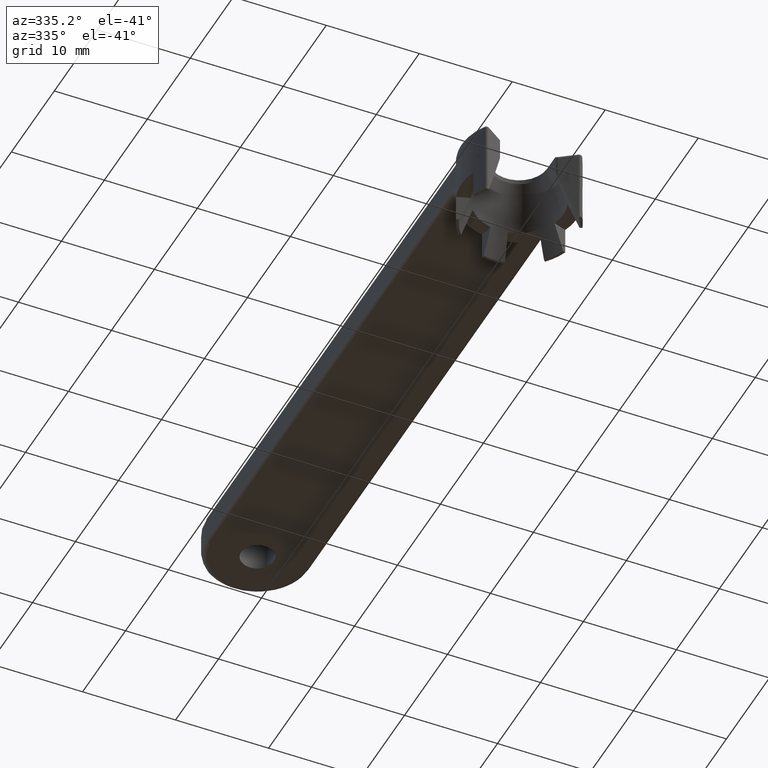
[diagram: clean part render]
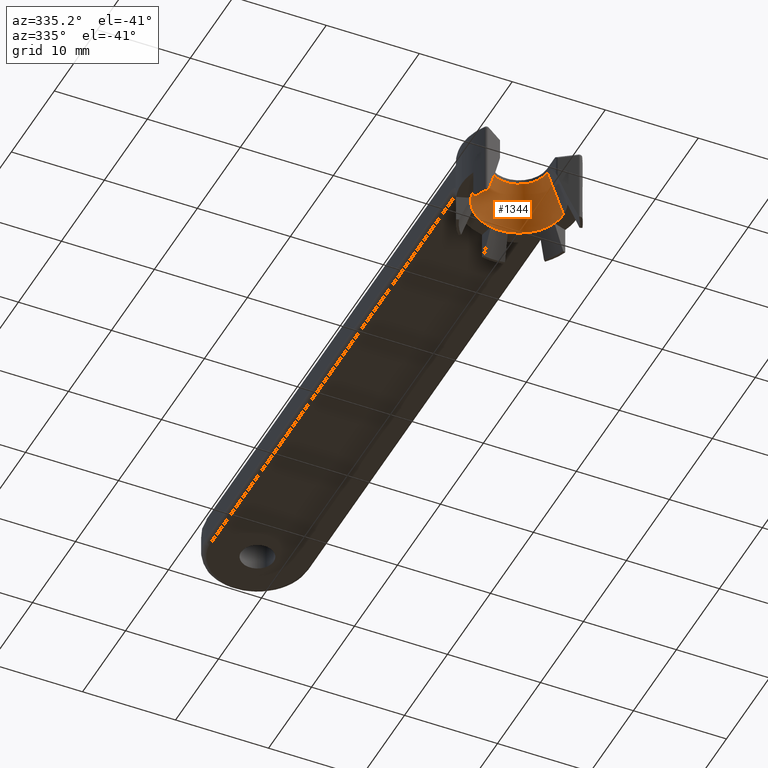
[diagram: same view with one face highlighted and labeled with its STEP entity id]
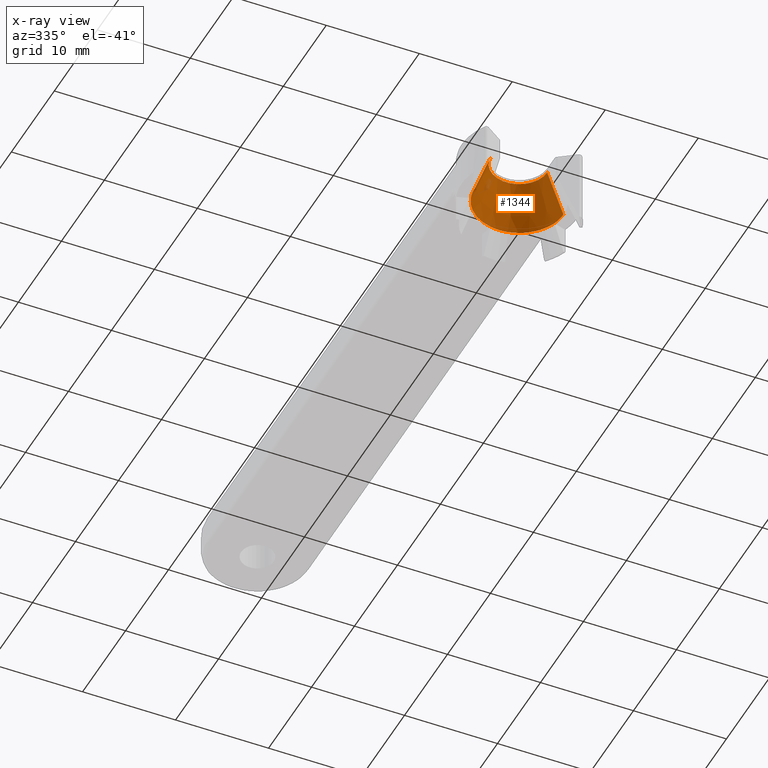
[diagram: x-ray of the same camera — body ghosted, the highlighted face saturated]
A machine part, auxiliary view. The second image highlights one B-rep face of the part: STEP entity #1344.
The next image is the same camera in x-ray: the body ghosted, the highlighted face saturated — about 1% of this face is hidden behind the body in this view.
In plain terms, the highlighted conical surface has half-angle 20 deg.
Its self-contained STEP definition (entity closure, byte-faithful):
#41 = CARTESIAN_POINT ( 'NONE',  ( 0.0000000000000000000, 0.0000000000000000000, -0.5000000000000000000 ) ) ;
#109 = DIRECTION ( 'NONE',  ( 0.0000000000000000000, 0.0000000000000000000, -1.000000000000000000 ) ) ;
#168 = CARTESIAN_POINT ( 'NONE',  ( 3.873528562000000200, -1.588947977036520900E-009, -2.899999999999999900 ) ) ;
#191 = VERTEX_POINT ( 'NONE', #1150 ) ;
#242 = DIRECTION ( 'NONE',  ( -0.0000000000000000000, -0.0000000000000000000, -1.000000000000000000 ) ) ;
#245 = DIRECTION ( 'NONE',  ( 0.0000000000000000000, 0.0000000000000000000, -1.000000000000000000 ) ) ;
#246 = ORIENTED_EDGE ( 'NONE', *, *, #972, .T. ) ;
#248 = ORIENTED_EDGE ( 'NONE', *, *, #2058, .T. ) ;
#252 = ORIENTED_EDGE ( 'NONE', *, *, #1004, .T. ) ;
#276 = CARTESIAN_POINT ( 'NONE',  ( 4.493849813978577000, 1.529661788737586700, -5.300000000000041600 ) ) ;
#278 = DIRECTION ( 'NONE',  ( -1.000000000000000000, 0.0000000000000000000, 1.735798895115598900E-014 ) ) ;
#298 = AXIS2_PLACEMENT_3D ( 'NONE', #641, #109, #278 ) ;
#352 = ORIENTED_EDGE ( 'NONE', *, *, #364, .F. ) ;
#364 = EDGE_CURVE ( 'NONE', #1624, #1091, #2244, .T. ) ;
#407 = CARTESIAN_POINT ( 'NONE',  ( 0.0000000000000000000, 0.0000000000000000000, -5.300000000000082400 ) ) ;
#425 = DIRECTION ( 'NONE',  ( 1.000000000000000000, 0.0000000000000000000, 1.445602896647339200E-016 ) ) ;
#448 = ORIENTED_EDGE ( 'NONE', *, *, #1650, .T. ) ;
#452 = AXIS2_PLACEMENT_3D ( 'NONE', #1766, #704, #1944 ) ;
#469 = CARTESIAN_POINT ( 'NONE',  ( 0.9221989373213911300, 4.656618994347986100, -5.300000000000041600 ) ) ;
#549 = CARTESIAN_POINT ( 'NONE',  ( -3.000000000126087100, -2.693808853088427400E-010, -0.5000000005371281200 ) ) ;
#574 = DIRECTION ( 'NONE',  ( -1.000000000000000000, 0.0000000000000000000, 1.735798895115598900E-014 ) ) ;
#641 = CARTESIAN_POINT ( 'NONE',  ( 0.0000000000000000000, 0.0000000000000000000, -5.300000000000082400 ) ) ;
#642 = VERTEX_POINT ( 'NONE', #819 ) ;
#671 = CIRCLE ( 'NONE', #1058, 4.747057124000000300 ) ;
#674 = CARTESIAN_POINT ( 'NONE',  ( 4.747057124000015400, -1.947274328922637100E-009, -5.300000000000041600 ) ) ;
#704 = DIRECTION ( 'NONE',  ( 0.0000000000000000000, 0.0000000000000000000, -1.000000000000000000 ) ) ;
#781 = AXIS2_PLACEMENT_3D ( 'NONE', #2101, #2148, #1084 ) ;
#800 = AXIS2_PLACEMENT_3D ( 'NONE', #1328, #245, #1485 ) ;
#819 = CARTESIAN_POINT ( 'NONE',  ( -3.571650876036336400, 3.126957204412652600, -5.300000000000082400 ) ) ;
#841 = EDGE_CURVE ( 'NONE', #1306, #642, #671, .T. ) ;
#844 = ORIENTED_EDGE ( 'NONE', *, *, #841, .T. ) ;
#848 = VERTEX_POINT ( 'NONE', #674 ) ;
#859 = CARTESIAN_POINT ( 'NONE',  ( -4.747057124000029700, -4.262554835224287600E-010, -5.300000000000082400 ) ) ;
#892 = ORIENTED_EDGE ( 'NONE', *, *, #2203, .T. ) ;
#911 = CARTESIAN_POINT ( 'NONE',  ( 0.0000000000000000000, 0.0000000000000000000, -5.300000000000082400 ) ) ;
#915 = CIRCLE ( 'NONE', #452, 4.747057124000000300 ) ;
#967 = LINE ( 'NONE', #1315, #1909 ) ;
#972 = EDGE_CURVE ( 'NONE', #191, #1469, #1756, .T. ) ;
#1004 = EDGE_CURVE ( 'NONE', #1746, #1306, #1237, .T. ) ;
#1034 = VERTEX_POINT ( 'NONE', #1427 ) ;
#1058 = AXIS2_PLACEMENT_3D ( 'NONE', #911, #1688, #1342 ) ;
#1076 = CARTESIAN_POINT ( 'NONE',  ( 0.0000000000000000000, 0.0000000000000000000, -5.300000000000000700 ) ) ;
#1081 = CONICAL_SURFACE ( 'NONE', #1550, 3.000000000000000000, 0.3490658503109737000 ) ;
#1084 = DIRECTION ( 'NONE',  ( -1.000000000000000000, 0.0000000000000000000, 0.0000000000000000000 ) ) ;
#1091 = VERTEX_POINT ( 'NONE', #2251 ) ;
#1142 = FACE_OUTER_BOUND ( 'NONE', #2252, .T. ) ;
#1147 = ORIENTED_EDGE ( 'NONE', *, *, #1533, .T. ) ;
#1150 = CARTESIAN_POINT ( 'NONE',  ( 3.573942068530038700, 3.124338238621161800, -5.300000000000041600 ) ) ;
#1237 = CIRCLE ( 'NONE', #781, 4.747057124000029700 ) ;
#1261 = DIRECTION ( 'NONE',  ( -1.000000000000000000, 0.0000000000000000000, 0.0000000000000000000 ) ) ;
#1306 = VERTEX_POINT ( 'NONE', #1308 ) ;
#1308 = CARTESIAN_POINT ( 'NONE',  ( -4.492727318598460000, 1.532955504650493200, -5.300000000000082400 ) ) ;
#1313 = DIRECTION ( 'NONE',  ( 0.0000000000000000000, 0.0000000000000000000, -1.000000000000000000 ) ) ;
#1315 = CARTESIAN_POINT ( 'NONE',  ( -3.868287390500000400, -6.946951211962206900E-010, -2.885599999999999700 ) ) ;
#1328 = CARTESIAN_POINT ( 'NONE',  ( 0.0000000000000000000, 0.0000000000000000000, -5.300000000000000700 ) ) ;
#1342 = DIRECTION ( 'NONE',  ( -1.000000000000000000, 0.0000000000000000000, 1.735798895115598900E-014 ) ) ;
#1344 = ADVANCED_FACE ( 'NONE', ( #1142 ), #1081, .F. ) ;
#1372 = VERTEX_POINT ( 'NONE', #469 ) ;
#1427 = CARTESIAN_POINT ( 'NONE',  ( -0.9187852497732953400, 4.657293742434351500, -5.300000000000041600 ) ) ;
#1440 = ORIENTED_EDGE ( 'NONE', *, *, #1921, .F. ) ;
#1469 = VERTEX_POINT ( 'NONE', #276 ) ;
#1485 = DIRECTION ( 'NONE',  ( -1.000000000000000000, 0.0000000000000000000, 0.0000000000000000000 ) ) ;
#1527 = VECTOR ( 'NONE', #1955, 999.9999999999998900 ) ;
#1533 = EDGE_CURVE ( 'NONE', #1372, #191, #915, .T. ) ;
#1538 = AXIS2_PLACEMENT_3D ( 'NONE', #1076, #2313, #1261 ) ;
#1550 = AXIS2_PLACEMENT_3D ( 'NONE', #41, #1313, #1915 ) ;
#1565 = AXIS2_PLACEMENT_3D ( 'NONE', #2208, #242, #425 ) ;
#1624 = VERTEX_POINT ( 'NONE', #549 ) ;
#1643 = DIRECTION ( 'NONE',  ( 0.0000000000000000000, 0.0000000000000000000, -1.000000000000000000 ) ) ;
#1650 = EDGE_CURVE ( 'NONE', #1034, #1372, #2169, .T. ) ;
#1663 = DIRECTION ( 'NONE',  ( 0.3420201432870673700, 6.142245932292193800E-011, 0.9396926207999581900 ) ) ;
#1688 = DIRECTION ( 'NONE',  ( 0.0000000000000000000, 0.0000000000000000000, -1.000000000000000000 ) ) ;
#1728 = ORIENTED_EDGE ( 'NONE', *, *, #2000, .T. ) ;
#1737 = CIRCLE ( 'NONE', #1538, 4.747057124000000300 ) ;
#1746 = VERTEX_POINT ( 'NONE', #859 ) ;
#1756 = CIRCLE ( 'NONE', #298, 4.747057124000000300 ) ;
#1766 = CARTESIAN_POINT ( 'NONE',  ( 0.0000000000000000000, 0.0000000000000000000, -5.300000000000000700 ) ) ;
#1876 = AXIS2_PLACEMENT_3D ( 'NONE', #407, #1643, #574 ) ;
#1909 = VECTOR ( 'NONE', #1663, 1000.000000000000100 ) ;
#1915 = DIRECTION ( 'NONE',  ( -1.000000000000000000, 0.0000000000000000000, 0.0000000000000000000 ) ) ;
#1921 = EDGE_CURVE ( 'NONE', #1746, #1624, #967, .T. ) ;
#1944 = DIRECTION ( 'NONE',  ( -1.000000000000000000, 0.0000000000000000000, 0.0000000000000000000 ) ) ;
#1955 = DIRECTION ( 'NONE',  ( -0.3420201432430770600, 1.402990080009195300E-010, 0.9396926208159693800 ) ) ;
#2000 = EDGE_CURVE ( 'NONE', #1469, #848, #1737, .T. ) ;
#2020 = LINE ( 'NONE', #168, #1527 ) ;
#2058 = EDGE_CURVE ( 'NONE', #642, #1034, #2095, .T. ) ;
#2095 = CIRCLE ( 'NONE', #800, 4.747057124000000300 ) ;
#2101 = CARTESIAN_POINT ( 'NONE',  ( 0.0000000000000000000, 0.0000000000000000000, -5.300000000000082400 ) ) ;
#2148 = DIRECTION ( 'NONE',  ( 0.0000000000000000000, 0.0000000000000000000, -1.000000000000000000 ) ) ;
#2169 = CIRCLE ( 'NONE', #1876, 4.747057124000000300 ) ;
#2203 = EDGE_CURVE ( 'NONE', #848, #1091, #2020, .T. ) ;
#2208 = CARTESIAN_POINT ( 'NONE',  ( 0.0000000000000000000, 0.0000000000000000000, -0.5000000000000004400 ) ) ;
#2244 = CIRCLE ( 'NONE', #1565, 3.000000000000000000 ) ;
#2251 = CARTESIAN_POINT ( 'NONE',  ( 3.000000000000000000, -6.153102855459936400E-010, -0.5000000000000004400 ) ) ;
#2252 = EDGE_LOOP ( 'NONE', ( #246, #1728, #892, #352, #1440, #252, #844, #248, #448, #1147 ) ) ;
#2313 = DIRECTION ( 'NONE',  ( 0.0000000000000000000, 0.0000000000000000000, -1.000000000000000000 ) ) ;